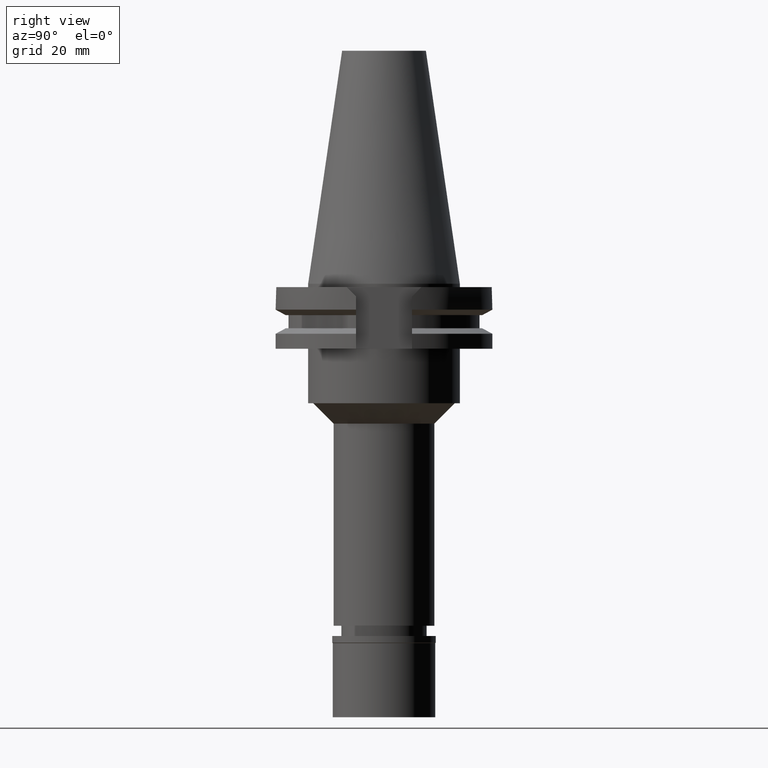
[diagram: clean part render]
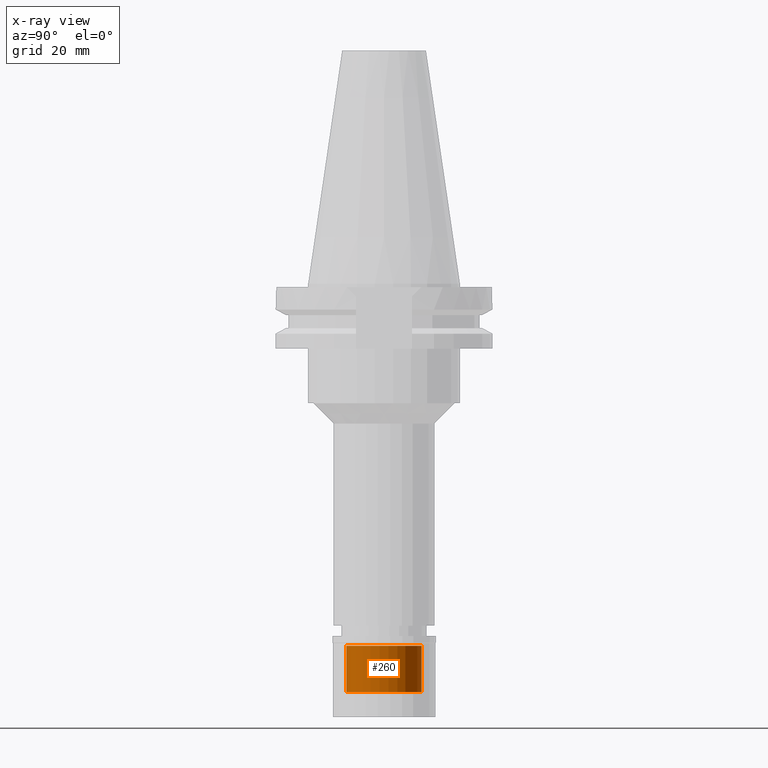
[diagram: x-ray — body ghosted, one internal face saturated and labeled with its STEP entity id]
A machine part, right view, then the same camera in x-ray: the body is ghosted and one INTERNAL B-rep face — a face not visible from any outside direction — is saturated and labeled: STEP entity #260.
In plain terms, the highlighted cylindrical surface (partial cylindrical patch) has radius 11 mm, axis along (0, 0, -1).
Its self-contained STEP definition (entity closure, byte-faithful):
#3 = VERTEX_POINT ( 'NONE', #2759 ) ;
#61 = VERTEX_POINT ( 'NONE', #2648 ) ;
#161 = EDGE_CURVE ( 'NONE', #61, #3, #2574, .T. ) ;
#260 = ADVANCED_FACE ( 'NONE', ( #1395 ), #1625, .F. ) ;
#278 = DIRECTION ( 'NONE',  ( 0.0000000000000000000, 0.0000000000000000000, 1.000000000000000000 ) ) ;
#324 = DIRECTION ( 'NONE',  ( 0.0000000000000000000, 0.0000000000000000000, 1.000000000000000000 ) ) ;
#487 = CARTESIAN_POINT ( 'NONE',  ( 0.0000000000000000000, 11.00000000000000000, -2.899999999999999911 ) ) ;
#513 = VERTEX_POINT ( 'NONE', #487 ) ;
#838 = DIRECTION ( 'NONE',  ( 0.0000000000000000000, 0.0000000000000000000, -1.000000000000000000 ) ) ;
#844 = AXIS2_PLACEMENT_3D ( 'NONE', #1325, #838, #1275 ) ;
#1039 = ORIENTED_EDGE ( 'NONE', *, *, #1944, .F. ) ;
#1051 = CIRCLE ( 'NONE', #1895, 11.00000000000000000 ) ;
#1071 = DIRECTION ( 'NONE',  ( 0.0000000000000000000, -1.000000000000000000, 0.0000000000000000000 ) ) ;
#1109 = CIRCLE ( 'NONE', #844, 11.00000000000000000 ) ;
#1126 = DIRECTION ( 'NONE',  ( 0.0000000000000000000, -1.000000000000000000, 0.0000000000000000000 ) ) ;
#1179 = DIRECTION ( 'NONE',  ( 0.0000000000000000000, 0.0000000000000000000, -1.000000000000000000 ) ) ;
#1233 = VERTEX_POINT ( 'NONE', #2442 ) ;
#1275 = DIRECTION ( 'NONE',  ( 0.0000000000000000000, 1.000000000000000000, 0.0000000000000000000 ) ) ;
#1325 = CARTESIAN_POINT ( 'NONE',  ( 0.0000000000000000000, 0.0000000000000000000, -16.50000000000000000 ) ) ;
#1394 = EDGE_LOOP ( 'NONE', ( #2115, #1445, #2300, #1039 ) ) ;
#1395 = FACE_OUTER_BOUND ( 'NONE', #1394, .T. ) ;
#1445 = ORIENTED_EDGE ( 'NONE', *, *, #161, .T. ) ;
#1625 = CYLINDRICAL_SURFACE ( 'NONE', #2254, 11.00000000000000000 ) ;
#1795 = DIRECTION ( 'NONE',  ( 0.0000000000000000000, 0.0000000000000000000, 1.000000000000000000 ) ) ;
#1865 = EDGE_CURVE ( 'NONE', #1233, #61, #1109, .T. ) ;
#1895 = AXIS2_PLACEMENT_3D ( 'NONE', #2567, #324, #1071 ) ;
#1944 = EDGE_CURVE ( 'NONE', #1233, #513, #2550, .T. ) ;
#2085 = VECTOR ( 'NONE', #278, 1000.000000000000000 ) ;
#2115 = ORIENTED_EDGE ( 'NONE', *, *, #1865, .T. ) ;
#2254 = AXIS2_PLACEMENT_3D ( 'NONE', #2437, #1179, #1126 ) ;
#2300 = ORIENTED_EDGE ( 'NONE', *, *, #2370, .T. ) ;
#2332 = CARTESIAN_POINT ( 'NONE',  ( 0.0000000000000000000, 11.00000000000000000, -16.50000000000000000 ) ) ;
#2337 = CARTESIAN_POINT ( 'NONE',  ( 0.0000000000000000000, -11.00000000000000000, -16.50000000000000000 ) ) ;
#2370 = EDGE_CURVE ( 'NONE', #3, #513, #1051, .T. ) ;
#2437 = CARTESIAN_POINT ( 'NONE',  ( 0.0000000000000000000, 0.0000000000000000000, 0.0000000000000000000 ) ) ;
#2442 = CARTESIAN_POINT ( 'NONE',  ( 0.0000000000000000000, 11.00000000000000000, -16.50000000000000000 ) ) ;
#2500 = VECTOR ( 'NONE', #1795, 1000.000000000000000 ) ;
#2550 = LINE ( 'NONE', #2332, #2500 ) ;
#2567 = CARTESIAN_POINT ( 'NONE',  ( 0.0000000000000000000, 0.0000000000000000000, -2.899999999999999911 ) ) ;
#2574 = LINE ( 'NONE', #2337, #2085 ) ;
#2648 = CARTESIAN_POINT ( 'NONE',  ( 0.0000000000000000000, -11.00000000000000000, -16.50000000000000000 ) ) ;
#2759 = CARTESIAN_POINT ( 'NONE',  ( 0.0000000000000000000, -11.00000000000000000, -2.899999999999999911 ) ) ;